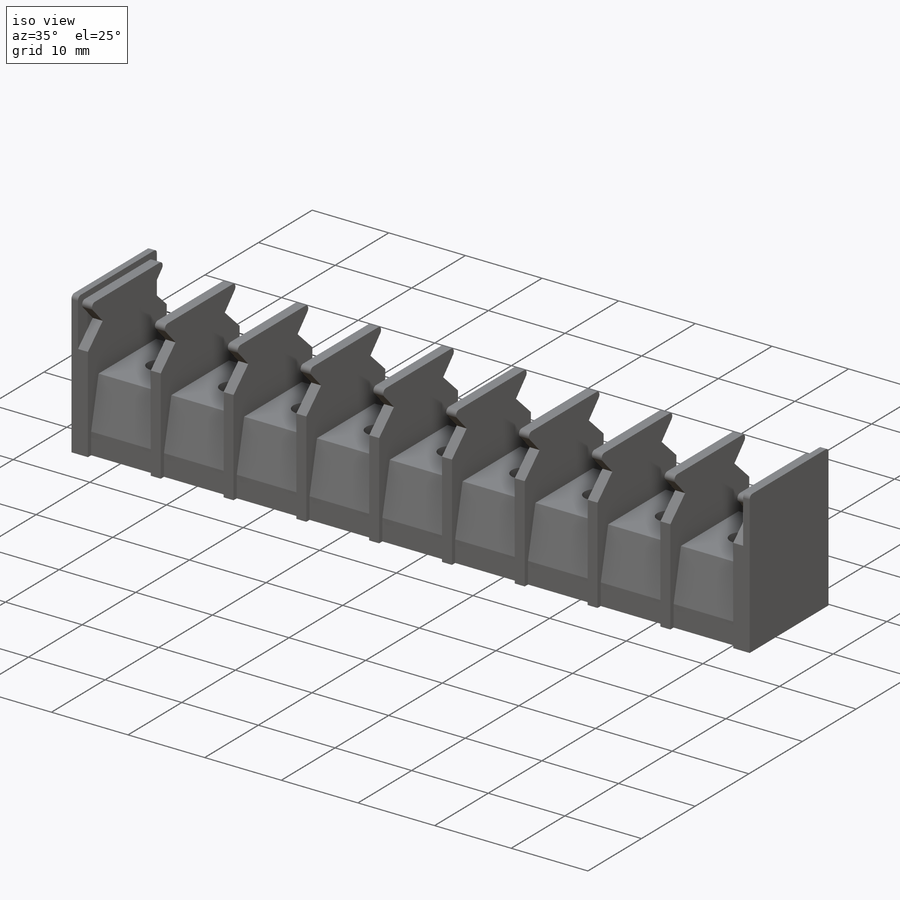
[diagram: iso view]
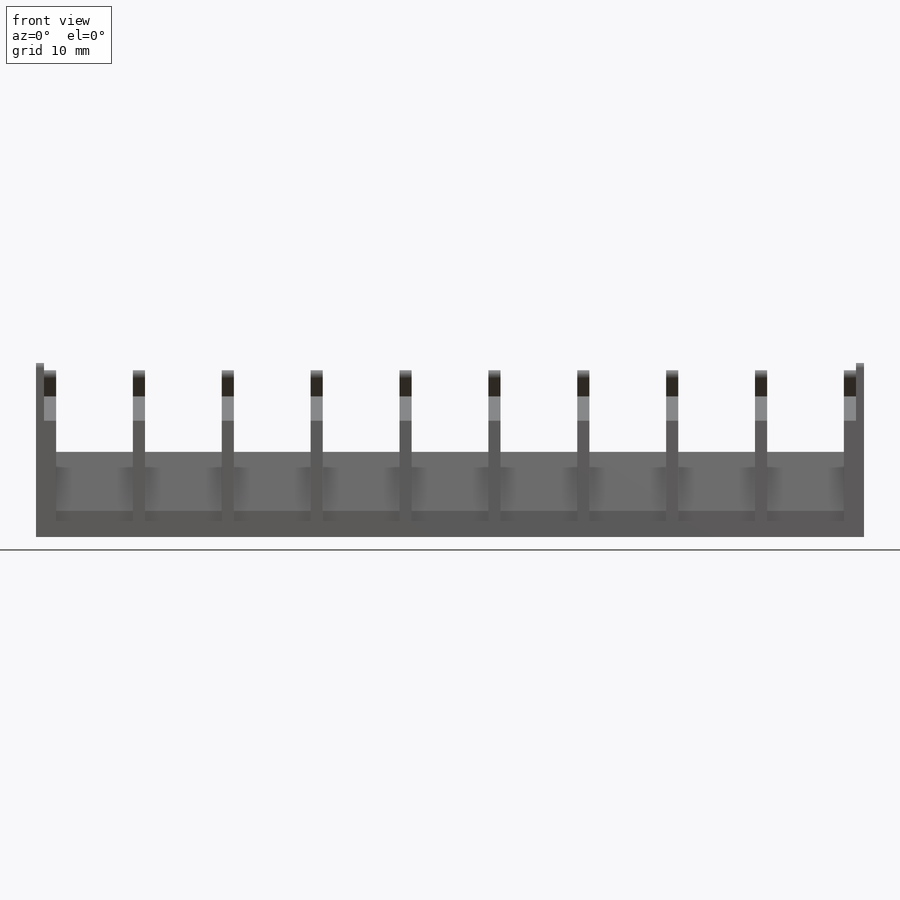
[diagram: front view]
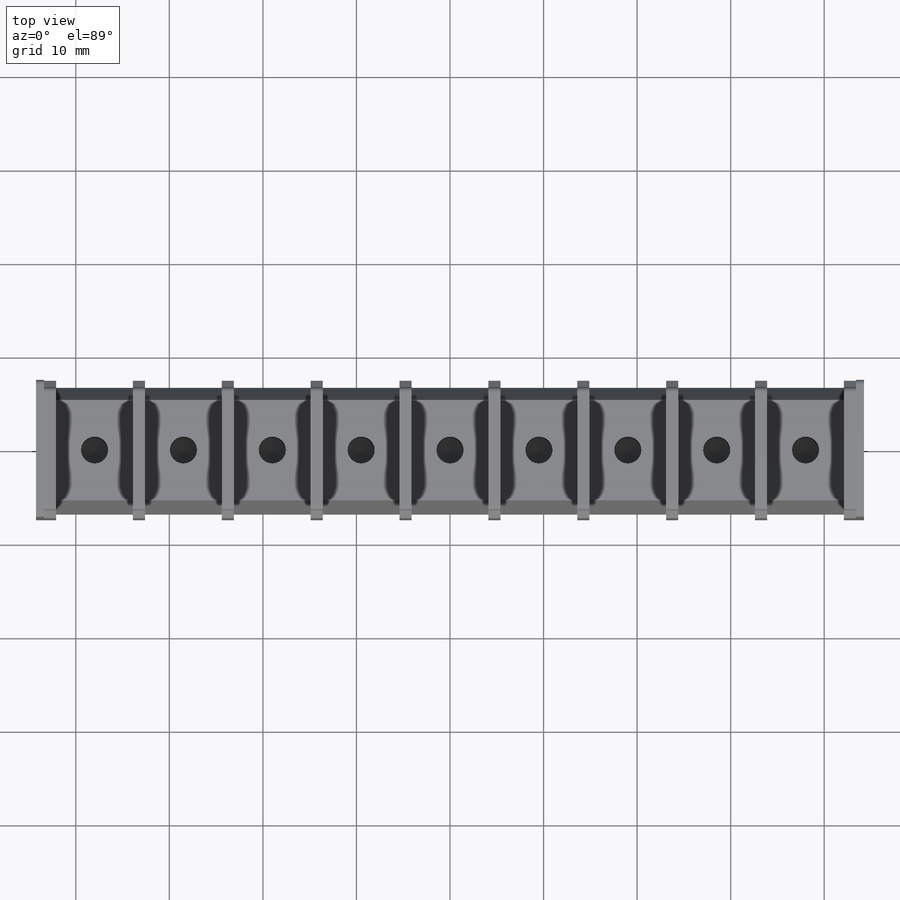
[diagram: top view]
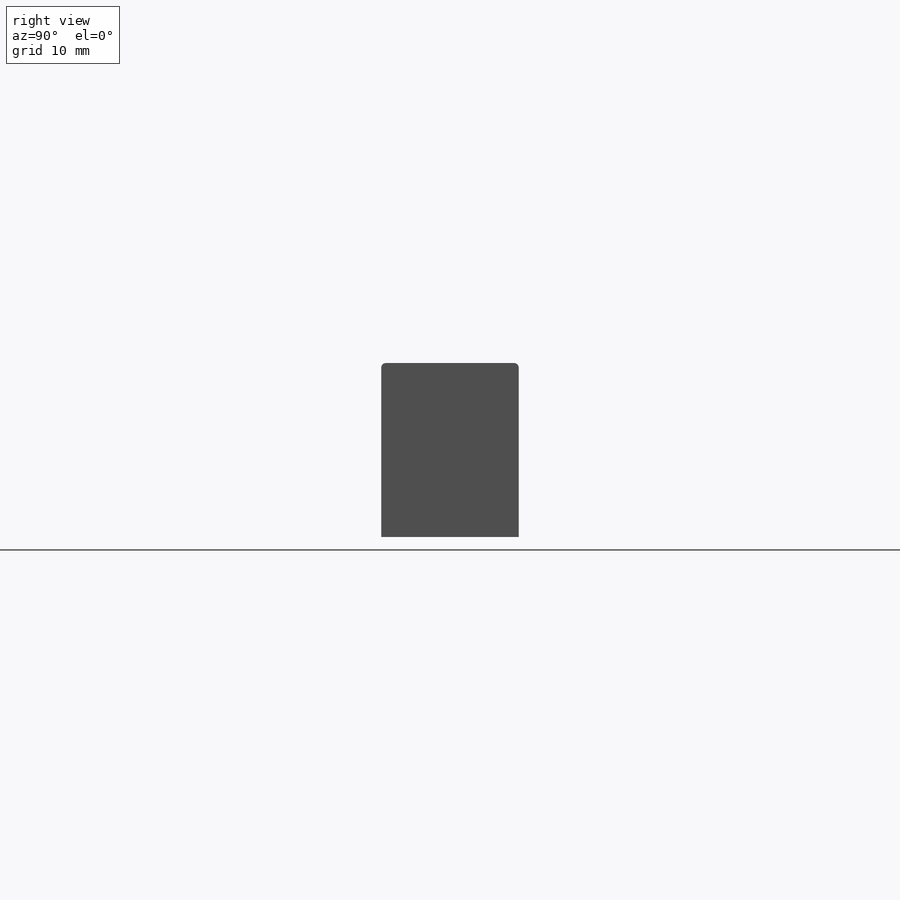
[diagram: right view]
SOLIDWORKS PART (.sldprt)
format: sldprt  version: not decoded by parser v0  size: 523,264 bytes
history: native  units: mm
features: thread x9, sketch x5, extrude x3, material x1, mirror x1, pattern_linear x1, hole x1 (+13 scaffold rows collapsed)
feature tree (34):
  scaffold x13  (default folders/planes/origin — collapsed)
  material  "6061 Alloy"
  sketch  "Sketch1"  dims[D1=18.6mm D2=14.7mm D3=1.2mm D4=10.73mm D5=9.1mm D6=2.79mm]
  extrude  "Boss-Extrude1"  Depth=88.5mm
  sketch  "Sketch3"  dims[D4=0.5mm D2=18.6mm D3=14.7mm D1=0.0mm]
  extrude  "Boss-Extrude2"  Depth=0.85mm
  mirror  "Mirror1"
  sketch  "Sketch4"  dims[D3=0.5mm D1=12.42mm D2=0.77mm D4=2.8mm D5=13.15mm]
  extrude  "Boss-Extrude3"  Depth=1.3mm
  pattern_linear  "LPattern1"  Count1=10 Count2=1 Spacing1=9.5mm Spacing2=10mm
  hole  "M3.5x0.6 Tapped Hole1"  Diameter=2.9mm Depth=8mm
  sketch  "Sketch6"
  sketch  "Sketch5"  dims[hole-wizard template sketch: 46 standard entries collapsed; hole parameters kept: c15.Tap Drill Dia.=2.9mm c15.Tap Drill Depth=8.0mm c15.D3=~14.816244mm c15.Drill Angle=118.0deg]
  thread  "Hole Thread1"  Diameter=6mm  [1 undecoded]
  thread  "Hole Thread2"  Diameter=6mm  [1 undecoded]
  thread  "Hole Thread3"  Diameter=6mm  [1 undecoded]
  thread  "Hole Thread4"  Diameter=6mm  [1 undecoded]
  thread  "Hole Thread5"  Diameter=6mm  [1 undecoded]
  thread  "Hole Thread6"  Diameter=6mm  [1 undecoded]
  thread  "Hole Thread7"  Diameter=6mm  [1 undecoded]
  thread  "Hole Thread8"  Diameter=6mm  [1 undecoded]
  thread  "Hole Thread9"  Diameter=6mm  [1 undecoded]
decode coverage: 18 of 20 modeling features carry decoded parameters
note: ~ marks probable driven/reference dimensions
note: 9 parameter values undecoded
note: suppression state not decoded; provenance and decode notes live in map.json
